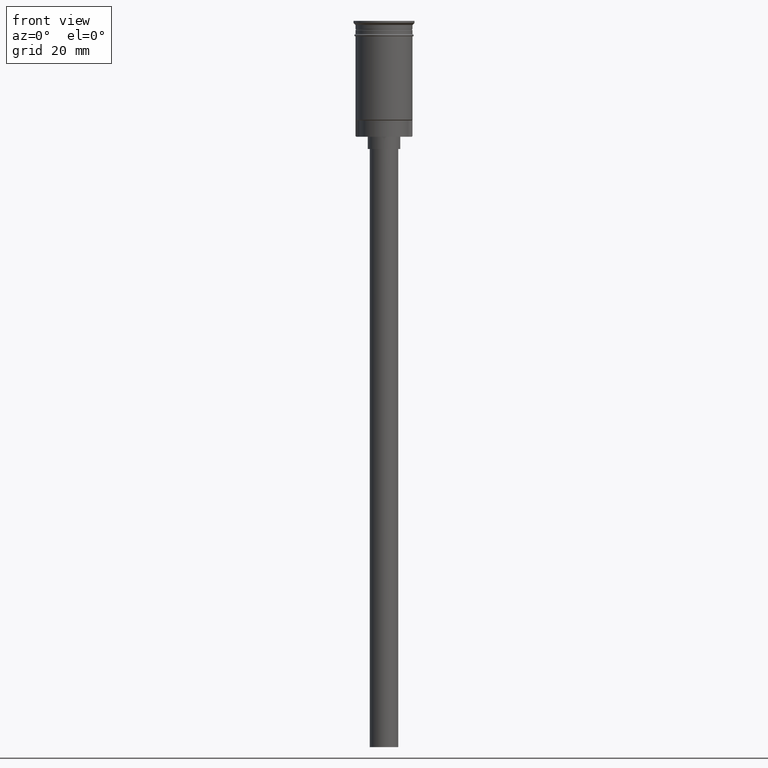
[diagram: clean part render]
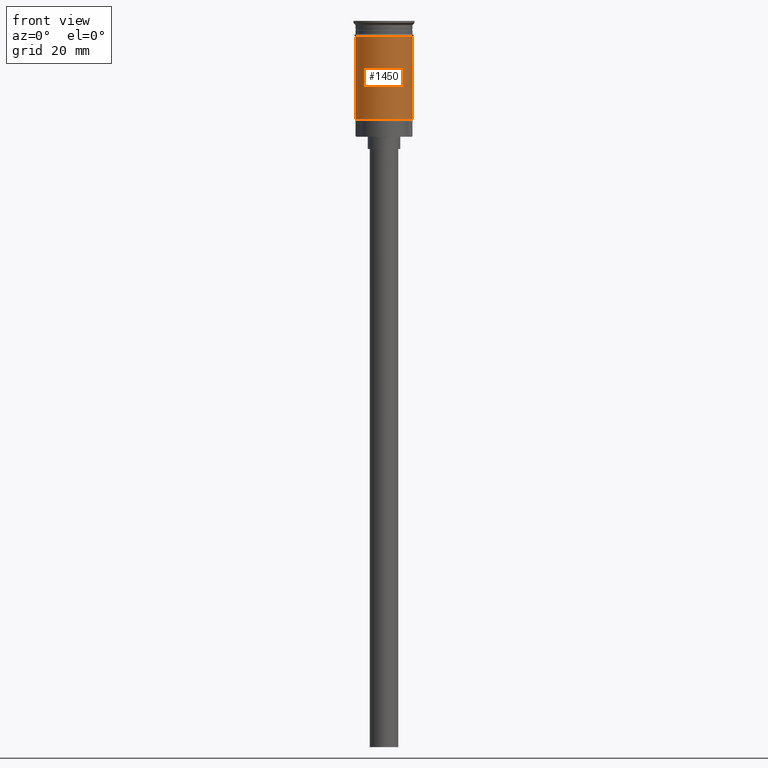
[diagram: same view with one face highlighted and labeled with its STEP entity id]
A machine part, front view. The second image highlights one B-rep face of the part: STEP entity #1450.
In plain terms, the highlighted cylindrical surface (edge-blend (fillet) strip) has radius 7 mm, axis along (-0, -0, 1).
Its self-contained STEP definition (entity closure, byte-faithful):
#36 = CARTESIAN_POINT ( 'NONE',  ( 6.999999999999996447, 0.000000000000000000, 0.000000000000000000 ) ) ;
#38 = LINE ( 'NONE', #528, #137 ) ;
#44 = EDGE_CURVE ( 'NONE', #1339, #1480, #939, .T. ) ;
#84 = CARTESIAN_POINT ( 'NONE',  ( 6.999999999999999112, 0.000000000000000000, -3.799999999999998490 ) ) ;
#137 = VECTOR ( 'NONE', #165, 1000.000000000000000 ) ;
#165 = DIRECTION ( 'NONE',  ( -0.000000000000000000, -0.000000000000000000, 1.000000000000000000 ) ) ;
#248 = VECTOR ( 'NONE', #908, 1000.000000000000000 ) ;
#255 = ORIENTED_EDGE ( 'NONE', *, *, #607, .F. ) ;
#320 = ORIENTED_EDGE ( 'NONE', *, *, #1546, .T. ) ;
#323 = EDGE_CURVE ( 'NONE', #1339, #811, #38, .T. ) ;
#385 = ORIENTED_EDGE ( 'NONE', *, *, #44, .T. ) ;
#419 = DIRECTION ( 'NONE',  ( -0.000000000000000000, -0.000000000000000000, 1.000000000000000000 ) ) ;
#465 = ORIENTED_EDGE ( 'NONE', *, *, #323, .F. ) ;
#476 = VERTEX_POINT ( 'NONE', #84 ) ;
#493 = DIRECTION ( 'NONE',  ( -0.000000000000000000, -0.000000000000000000, 1.000000000000000000 ) ) ;
#494 = CARTESIAN_POINT ( 'NONE',  ( -6.999999999999993783, 0.000000000000000000, -24.29999999999998295 ) ) ;
#501 = CIRCLE ( 'NONE', #843, 6.999999999999999112 ) ;
#528 = CARTESIAN_POINT ( 'NONE',  ( -6.999999999999996447, 8.572527594031468259E-16, 0.000000000000000000 ) ) ;
#530 = CARTESIAN_POINT ( 'NONE',  ( 0.000000000000000000, 0.000000000000000000, -24.29999999999998295 ) ) ;
#607 = EDGE_CURVE ( 'NONE', #811, #476, #501, .T. ) ;
#655 = LINE ( 'NONE', #36, #248 ) ;
#712 = CARTESIAN_POINT ( 'NONE',  ( -7.000000000000000000, 8.572527594031472204E-16, -3.799999999999998490 ) ) ;
#791 = CARTESIAN_POINT ( 'NONE',  ( 6.999999999999996447, 8.572527594031468259E-16, -24.29999999999998295 ) ) ;
#811 = VERTEX_POINT ( 'NONE', #712 ) ;
#843 = AXIS2_PLACEMENT_3D ( 'NONE', #1230, #493, #1477 ) ;
#878 = DIRECTION ( 'NONE',  ( -0.000000000000000000, -0.000000000000000000, 1.000000000000000000 ) ) ;
#891 = DIRECTION ( 'NONE',  ( 1.000000000000000000, 0.000000000000000000, 0.000000000000000000 ) ) ;
#901 = FACE_OUTER_BOUND ( 'NONE', #1191, .T. ) ;
#908 = DIRECTION ( 'NONE',  ( -0.000000000000000000, -0.000000000000000000, 1.000000000000000000 ) ) ;
#939 = CIRCLE ( 'NONE', #1147, 6.999999999999996447 ) ;
#975 = AXIS2_PLACEMENT_3D ( 'NONE', #1397, #419, #891 ) ;
#1024 = CYLINDRICAL_SURFACE ( 'NONE', #975, 6.999999999999996447 ) ;
#1147 = AXIS2_PLACEMENT_3D ( 'NONE', #530, #878, #1363 ) ;
#1191 = EDGE_LOOP ( 'NONE', ( #465, #385, #320, #255 ) ) ;
#1230 = CARTESIAN_POINT ( 'NONE',  ( 0.000000000000000000, 0.000000000000000000, -3.799999999999998490 ) ) ;
#1339 = VERTEX_POINT ( 'NONE', #494 ) ;
#1363 = DIRECTION ( 'NONE',  ( -1.000000000000000000, 0.000000000000000000, 0.000000000000000000 ) ) ;
#1397 = CARTESIAN_POINT ( 'NONE',  ( 0.000000000000000000, 0.000000000000000000, 0.000000000000000000 ) ) ;
#1450 = ADVANCED_FACE ( 'NONE', ( #901 ), #1024, .T. ) ;
#1477 = DIRECTION ( 'NONE',  ( 1.000000000000000000, 0.000000000000000000, 0.000000000000000000 ) ) ;
#1480 = VERTEX_POINT ( 'NONE', #791 ) ;
#1546 = EDGE_CURVE ( 'NONE', #1480, #476, #655, .T. ) ;